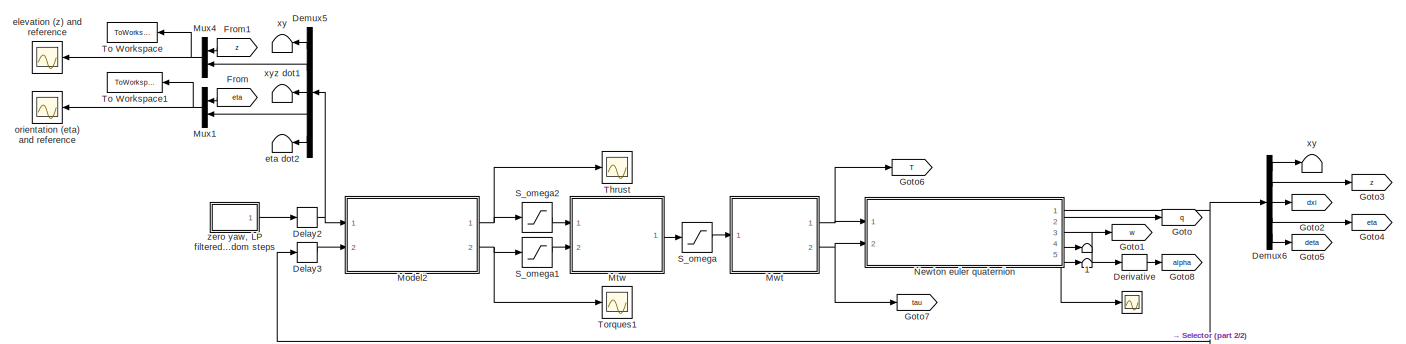
[diagram: root canvas - part 1/2, full width, top band]
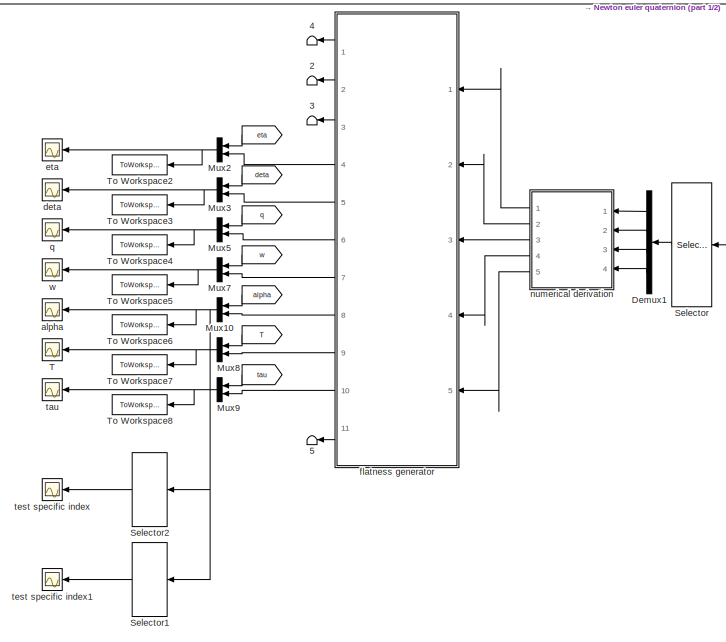
[diagram: root canvas - part 2/2, bottom center region]
MODEL slx_0e7864899def
KIND model
CONFIG AbsTol = 1e-3
CONFIG FixedStep = auto
CONFIG MaxStep = auto
CONFIG MinStep = auto
CONFIG RelTol = 1e-3
CONFIG SampleTimeConstraint = Unconstrained
CONFIG Solver = VariableStepAuto
CONFIG SolverMode = Auto
CONFIG SolverName = VariableStepAuto
CONFIG StartTime = 0.0
CONFIG StopTime = 60
BLOCK [Scope]  
  Ports = [1]
  ScopeSpecificationString = Simulink.scopes.TimeScopeBlockCfg('CurrentConfiguration', extmgr.ConfigurationSet(extmgr.Configuration('Core','General UI',true),extmgr.Configuration('Core','Source UI',true),extmgr.Configuration('Sources','WiredSimulink',true,'DataLoggingVariableName','ScopeData2','DataLoggingSaveFormat','Array','DataLoggingDecimation','1','DataLoggingDecimateData',true),extmgr.Configuration('Visuals','Time Domai...<+1591ch>
BLOCK [From]       
  GotoTag = deta
BLOCK [From]        
  GotoTag = eta
BLOCK [From]         
  GotoTag = q
BLOCK [From]          
  GotoTag = w
BLOCK [From]           
  GotoTag = T
BLOCK [From]            
  GotoTag = tau
BLOCK [Terminator]             
BLOCK [From]                
  GotoTag = alpha
BLOCK [Terminator]             1
BLOCK [Terminator]             2
BLOCK [Terminator]             3
BLOCK [Terminator]             4
BLOCK [Terminator]             5
BLOCK [Terminator]    eta dot2
BLOCK [Terminator]    xy
BLOCK [Terminator]    xy 
BLOCK [Terminator]   xyz dot1
BLOCK [Delay] Delay2
  DelayLength = 1
  InitialCondition = 0
  InputPortMap = u0
  Ports = [1, 1]
  SampleTime = inner_h
BLOCK [Delay] Delay3
  DelayLength = 1
  InitialCondition = 0
  InputPortMap = u0
  Ports = [1, 1]
  SampleTime = inner_h
BLOCK [Demux] Demux1
  DisplayOption = bar
  Ports = [1, 4]
BLOCK [Demux] Demux5
  DisplayOption = bar
  Outputs = [2,1,3,3,3]
  Ports = [1, 5]
BLOCK [Demux] Demux6
  DisplayOption = bar
  Outputs = [2,1,3,3,3]
  Ports = [1, 5]
BLOCK [Derivative] Derivative
BLOCK [From] From
  GotoTag = eta
BLOCK [From] From1
  GotoTag = z
BLOCK [Goto] Goto
  GotoTag = q
BLOCK [Goto] Goto1
  GotoTag = w
BLOCK [Goto] Goto2
  GotoTag = dxi
BLOCK [Goto] Goto3
  GotoTag = z
BLOCK [Goto] Goto4
  GotoTag = eta
BLOCK [Goto] Goto5
  GotoTag = deta
BLOCK [Goto] Goto6
  GotoTag = T
BLOCK [Goto] Goto7
  GotoTag = tau
BLOCK [Goto] Goto8
  GotoTag = alpha
BLOCK [ModelReference] Model2
  ModelNameDialog = inner_PD_c.mdl
  ModelReferenceVersion = 1.87
  Ports = [2, 2]
  Variant = off
BLOCK [ModelReference] Mtw
  ModelNameDialog = thrust2omega.mdl
  ModelReferenceVersion = 1.3
  Ports = [2, 1]
  Variant = off
BLOCK [Mux] Mux1
  DisplayOption = bar
  Inputs = 2
  Ports = [2, 1]
BLOCK [Mux] Mux10
  DisplayOption = bar
  Inputs = 2
  Ports = [2, 1]
BLOCK [Mux] Mux2
  DisplayOption = bar
  Inputs = 2
  Ports = [2, 1]
BLOCK [Mux] Mux3
  DisplayOption = bar
  Inputs = 2
  Ports = [2, 1]
BLOCK [Mux] Mux4
  DisplayOption = bar
  Inputs = 2
  Ports = [2, 1]
BLOCK [Mux] Mux5
  DisplayOption = bar
  Inputs = 2
  Ports = [2, 1]
BLOCK [Mux] Mux7
  DisplayOption = bar
  Inputs = 2
  Ports = [2, 1]
BLOCK [Mux] Mux8
  DisplayOption = bar
  Inputs = 2
  Ports = [2, 1]
BLOCK [Mux] Mux9
  DisplayOption = bar
  Inputs = 2
  Ports = [2, 1]
BLOCK [ModelReference] Mwt
  ModelNameDialog = omega2thrust.mdl
  ModelReferenceVersion = 1.3
  Ports = [1, 2]
  Variant = off
BLOCK [ModelReference] Newton euler quaternion
  ModelNameDialog = quadcopter_model_c_NewtonEuler.mdl
  ModelReferenceVersion = 1.325
  Ports = [2, 5]
  Variant = off
BLOCK [Saturate] S_omega
  InputPortMap = u0
  LowerLimit = omega_min_lim
  Ports = [1, 1]
  UpperLimit = omega_max_lim
BLOCK [Saturate] S_omega1
  InputPortMap = u0
  LowerLimit = tau_min_lim
  Ports = [1, 1]
  UpperLimit = tau_max_lim
BLOCK [Saturate] S_omega2
  InputPortMap = u0
  LowerLimit = tau_min_lim
  Ports = [1, 1]
  UpperLimit = T_max_lim
BLOCK [Selector] Selector
  IndexOptions = Index vector (dialog)
  Indices = [1 2 3 9]
  InputPortWidth = 12
  OutputSizes = 1
  Ports = [1, 1]
BLOCK [Selector] Selector1
  IndexOptions = Index vector (dialog)
  Indices = [2 5]
  InputPortWidth = 6
  OutputSizes = 1
  Ports = [1, 1]
BLOCK [Selector] Selector2
  IndexOptions = Index vector (dialog)
  Indices = [3 6]
  InputPortWidth = 6
  OutputSizes = 1
  Ports = [1, 1]
BLOCK [Scope] T
  Ports = [1]
  ScopeSpecificationString = Simulink.scopes.TimeScopeBlockCfg('CurrentConfiguration', extmgr.ConfigurationSet(extmgr.Configuration('Core','General UI',true),extmgr.Configuration('Core','Source UI',true),extmgr.Configuration('Sources','WiredSimulink',true,'DataLoggingVariableName','ScopeData5','DataLoggingSaveFormat','Array','DataLoggingDecimation','1','DataLoggingDecimateData',true),extmgr.Configuration('Visuals','Time Domai...<+1501ch>
BLOCK [Scope] Thrust
  Ports = [1]
  ScopeSpecificationString = Simulink.scopes.TimeScopeBlockCfg('CurrentConfiguration', extmgr.ConfigurationSet(extmgr.Configuration('Core','General UI',true),extmgr.Configuration('Core','Source UI',true),extmgr.Configuration('Sources','WiredSimulink',true,'DataLoggingVariableName','ScopeData1','DataLoggingLimitDataPoints',true,'DataLoggingSaveFormat','Array','DataLoggingDecimation','1','DataLoggingDecimateData',true),extmgr.C...<+1490ch>
BLOCK [ToWorkspace] To Workspace
  FixptAsFi = on
  MaxDataPoints = inf
  Ports = [1]
  SampleTime = -1
  Save2DSignal = 3-D array (concatenate along third dimension)
  SaveFormat = Timeseries
  VariableName = zresp
BLOCK [ToWorkspace] To Workspace1
  FixptAsFi = on
  MaxDataPoints = inf
  Ports = [1]
  SampleTime = -1
  Save2DSignal = 3-D array (concatenate along third dimension)
  SaveFormat = Timeseries
  VariableName = angresp
BLOCK [ToWorkspace] To Workspace2
  FixptAsFi = on
  MaxDataPoints = inf
  Ports = [1]
  SampleTime = -1
  Save2DSignal = 3-D array (concatenate along third dimension)
  SaveFormat = Timeseries
  VariableName = etaflat
BLOCK [ToWorkspace] To Workspace3
  FixptAsFi = on
  MaxDataPoints = inf
  Ports = [1]
  SampleTime = -1
  Save2DSignal = 3-D array (concatenate along third dimension)
  SaveFormat = Timeseries
  VariableName = detaflat
BLOCK [ToWorkspace] To Workspace4
  FixptAsFi = on
  MaxDataPoints = inf
  Ports = [1]
  SampleTime = -1
  Save2DSignal = 3-D array (concatenate along third dimension)
  SaveFormat = Timeseries
  VariableName = qflat
BLOCK [ToWorkspace] To Workspace5
  FixptAsFi = on
  MaxDataPoints = inf
  Ports = [1]
  SampleTime = -1
  Save2DSignal = 3-D array (concatenate along third dimension)
  SaveFormat = Timeseries
  VariableName = omegaflat
BLOCK [ToWorkspace] To Workspace6
  FixptAsFi = on
  MaxDataPoints = inf
  Ports = [1]
  SampleTime = -1
  Save2DSignal = 3-D array (concatenate along third dimension)
  SaveFormat = Timeseries
  VariableName = alphaflat
BLOCK [ToWorkspace] To Workspace7
  FixptAsFi = on
  MaxDataPoints = inf
  Ports = [1]
  SampleTime = -1
  Save2DSignal = 3-D array (concatenate along third dimension)
  SaveFormat = Timeseries
  VariableName = Tflat
BLOCK [ToWorkspace] To Workspace8
  FixptAsFi = on
  MaxDataPoints = inf
  Ports = [1]
  SampleTime = -1
  Save2DSignal = 3-D array (concatenate along third dimension)
  SaveFormat = Timeseries
  VariableName = tauflat
BLOCK [Scope] Torques1
  Ports = [1]
  ScopeSpecificationString = Simulink.scopes.TimeScopeBlockCfg('CurrentConfiguration', extmgr.ConfigurationSet(extmgr.Configuration('Core','General UI',true),extmgr.Configuration('Core','Source UI',true),extmgr.Configuration('Sources','WiredSimulink',true,'DataLoggingVariableName','ScopeData2','DataLoggingSaveFormat','Array','DataLoggingDecimation','1','DataLoggingDecimateData',true),extmgr.Configuration('Visuals','Time Domai...<+1486ch>
BLOCK [Scope] alpha
  Ports = [1]
  ScopeSpecificationString = Simulink.scopes.TimeScopeBlockCfg('CurrentConfiguration', extmgr.ConfigurationSet(extmgr.Configuration('Core','General UI',true),extmgr.Configuration('Core','Source UI',true),extmgr.Configuration('Sources','WiredSimulink',true,'DataLoggingVariableName','ScopeData1'),extmgr.Configuration('Visuals','Time Domain',true,'SerializedDisplays',{struct('MinYLimReal','-0.14909','MaxYLimReal','0.08031','YLab...<+1563ch>
BLOCK [Scope] deta
  Ports = [1]
  ScopeSpecificationString = Simulink.scopes.TimeScopeBlockCfg('CurrentConfiguration', extmgr.ConfigurationSet(extmgr.Configuration('Core','General UI',true),extmgr.Configuration('Core','Source UI',true),extmgr.Configuration('Sources','WiredSimulink',true,'DataLoggingVariableName','ScopeData2','DataLoggingSaveFormat','Array','DataLoggingDecimation','1','DataLoggingDecimateData',true),extmgr.Configuration('Visuals','Time Domai...<+1645ch>
BLOCK [Scope] elevation (z) and reference
  Ports = [1]
  ScopeSpecificationString = Simulink.scopes.TimeScopeBlockCfg('CurrentConfiguration', extmgr.ConfigurationSet(extmgr.Configuration('Core','General UI',true),extmgr.Configuration('Core','Source UI',true),extmgr.Configuration('Sources','WiredSimulink',true,'DataLoggingVariableName','ScopeData1'),extmgr.Configuration('Visuals','Time Domain',true,'SerializedDisplays',{struct('MinYLimReal','-0.65761','MaxYLimReal','0.65784','YLab...<+1407ch>
BLOCK [Scope] eta
  Ports = [1]
  ScopeSpecificationString = Simulink.scopes.TimeScopeBlockCfg('CurrentConfiguration', extmgr.ConfigurationSet(extmgr.Configuration('Core','General UI',true),extmgr.Configuration('Core','Source UI',true),extmgr.Configuration('Sources','WiredSimulink',true,'DataLoggingVariableName','ScopeData1','DataLoggingSaveFormat','Array','DataLoggingDecimation','1','DataLoggingDecimateData',true),extmgr.Configuration('Visuals','Time Domai...<+1642ch>
BLOCK [ModelReference] flatness generator
  ModelNameDialog = flatnessGen.slx
  ModelReferenceVersion = 1.117
  Ports = [5, 11]
  Variant = off
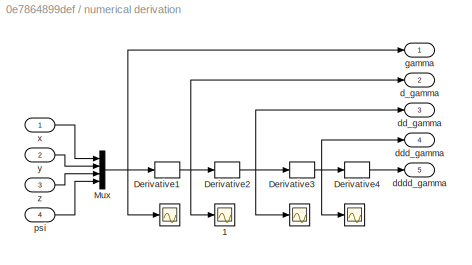
BLOCK [SubSystem] numerical derivation
  Ports = [4, 5]
  RequestExecContextInheritance = off
  Variant = off
BLOCK [Scope] numerical derivation/  
  Ports = [1]
  ScopeSpecificationString = C++SS(StrPVP('SaveName','ScopeData1'),StrPVP('LimitDataPoints','on'),StrPVP('DataFormat','Array'),StrPVP('Decimation','1'),StrPVP('BlockParamSampleInput','off'))
BLOCK [Scope] numerical derivation/   
  Ports = [1]
  ScopeSpecificationString = Simulink.scopes.TimeScopeBlockCfg('CurrentConfiguration', extmgr.ConfigurationSet(extmgr.Configuration('Core','General UI',true),extmgr.Configuration('Core','Source UI',true),extmgr.Configuration('Sources','WiredSimulink',true,'DataLoggingVariableName','ScopeData2','DataLoggingLimitDataPoints',true,'DataLoggingSaveFormat','Array','DataLoggingDecimation','1','DataLoggingDecimateData',true),extmgr.C...<+1557ch>
BLOCK [Scope] numerical derivation/    
  Ports = [1]
  ScopeSpecificationString = C++SS(StrPVP('SaveName','ScopeData3'),StrPVP('LimitDataPoints','on'),StrPVP('DataFormat','Array'),StrPVP('Decimation','1'),StrPVP('BlockParamSampleInput','off'))
BLOCK [Scope] numerical derivation/ 1
  Ports = [1]
  ScopeSpecificationString = C++SS(StrPVP('SaveName','ScopeData4'),StrPVP('LimitDataPoints','on'),StrPVP('DataFormat','Array'),StrPVP('Decimation','1'),StrPVP('BlockParamSampleInput','off'))
BLOCK [Derivative] numerical derivation/Derivative1
BLOCK [Derivative] numerical derivation/Derivative2
BLOCK [Derivative] numerical derivation/Derivative3
BLOCK [Derivative] numerical derivation/Derivative4
BLOCK [Mux] numerical derivation/Mux
  DisplayOption = bar
  Ports = [4, 1]
BLOCK [Outport] numerical derivation/d_gamma
  IconDisplay = Port number
  Port = 2
  PortDimensions = 4
BLOCK [Outport] numerical derivation/dd_gamma
  IconDisplay = Port number
  Port = 3
  PortDimensions = 4
BLOCK [Outport] numerical derivation/ddd_gamma
  IconDisplay = Port number
  Port = 4
  PortDimensions = 4
BLOCK [Outport] numerical derivation/dddd_gamma
  IconDisplay = Port number
  Port = 5
  PortDimensions = 4
BLOCK [Outport] numerical derivation/gamma
  IconDisplay = Port number
  PortDimensions = 4
BLOCK [Inport] numerical derivation/psi
  IconDisplay = Port number
  Port = 4
  PortDimensions = 1
BLOCK [Inport] numerical derivation/x
  IconDisplay = Port number
  PortDimensions = 1
BLOCK [Inport] numerical derivation/y
  IconDisplay = Port number
  Port = 2
  PortDimensions = 1
BLOCK [Inport] numerical derivation/z
  IconDisplay = Port number
  Port = 3
  PortDimensions = 1
BLOCK [Scope] orientation (eta) and reference
  Ports = [1]
  ScopeSpecificationString = Simulink.scopes.TimeScopeBlockCfg('CurrentConfiguration', extmgr.ConfigurationSet(extmgr.Configuration('Core','General UI',true),extmgr.Configuration('Core','Source UI',true),extmgr.Configuration('Sources','WiredSimulink',true,'DataLoggingVariableName','ScopeData2'),extmgr.Configuration('Visuals','Time Domain',true,'SerializedDisplays',{struct('MinYLimReal','-0.88157','MaxYLimReal','0.88415','YLab...<+1463ch>
BLOCK [Scope] q
  Ports = [1]
  ScopeSpecificationString = Simulink.scopes.TimeScopeBlockCfg('CurrentConfiguration', extmgr.ConfigurationSet(extmgr.Configuration('Core','General UI',true),extmgr.Configuration('Core','Source UI',true),extmgr.Configuration('Sources','WiredSimulink',true,'DataLoggingVariableName','ScopeData3','DataLoggingSaveFormat','Array','DataLoggingDecimation','1','DataLoggingDecimateData',true),extmgr.Configuration('Visuals','Time Domai...<+1713ch>
BLOCK [Scope] tau
  Ports = [1]
  ScopeSpecificationString = Simulink.scopes.TimeScopeBlockCfg('CurrentConfiguration', extmgr.ConfigurationSet(extmgr.Configuration('Core','General UI',true),extmgr.Configuration('Core','Source UI',true),extmgr.Configuration('Sources','WiredSimulink',true,'DataLoggingVariableName','ScopeData6','DataLoggingSaveFormat','Array','DataLoggingDecimation','1','DataLoggingDecimateData',true),extmgr.Configuration('Visuals','Time Domai...<+1618ch>
BLOCK [Scope] test specific index
  Ports = [1]
  ScopeSpecificationString = Simulink.scopes.TimeScopeBlockCfg('CurrentConfiguration', extmgr.ConfigurationSet(extmgr.Configuration('Core','General UI',true),extmgr.Configuration('Core','Source UI',true),extmgr.Configuration('Sources','WiredSimulink',true,'DataLoggingVariableName','ScopeData2'),extmgr.Configuration('Visuals','Time Domain',true,'SerializedDisplays',{struct('MinYLimReal','-0.60734','MaxYLimReal','0.45821','YLab...<+1458ch>
BLOCK [Scope] test specific index1
  Ports = [1]
  ScopeSpecificationString = Simulink.scopes.TimeScopeBlockCfg('CurrentConfiguration', extmgr.ConfigurationSet(extmgr.Configuration('Core','General UI',true),extmgr.Configuration('Core','Source UI',true),extmgr.Configuration('Sources','WiredSimulink',true,'DataLoggingVariableName','ScopeData1'),extmgr.Configuration('Visuals','Time Domain',true,'SerializedDisplays',{struct('MinYLimReal','-0.85133','MaxYLimReal','0.87428','YLab...<+1459ch>
BLOCK [Scope] w
  Ports = [1]
  ScopeSpecificationString = Simulink.scopes.TimeScopeBlockCfg('CurrentConfiguration', extmgr.ConfigurationSet(extmgr.Configuration('Core','General UI',true),extmgr.Configuration('Core','Source UI',true),extmgr.Configuration('Sources','WiredSimulink',true,'DataLoggingVariableName','ScopeData4','DataLoggingSaveFormat','Array','DataLoggingDecimation','1','DataLoggingDecimateData',true),extmgr.Configuration('Visuals','Time Domai...<+1699ch>
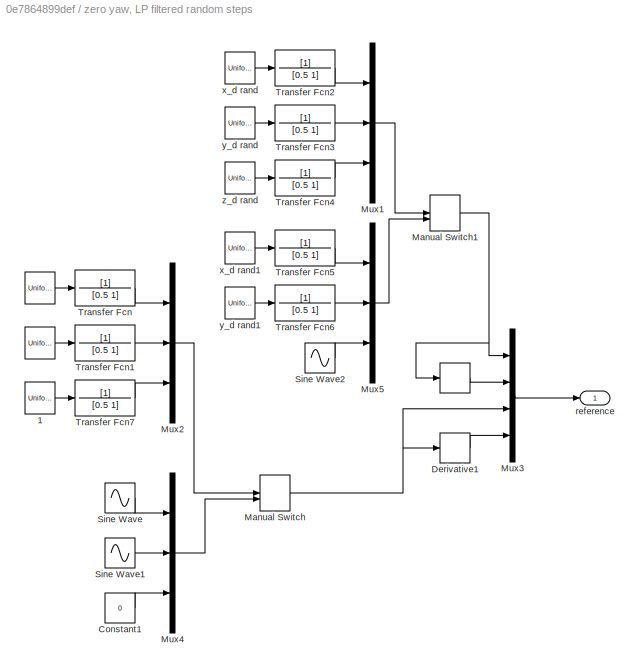
BLOCK [SubSystem] zero yaw, LP filtered random steps
  Ports = [0, 1]
  RequestExecContextInheritance = off
  Variant = off
BLOCK [UniformRandomNumber] zero yaw, LP filtered random steps/ 
  Maximum = pi/4
  Minimum = -pi/4
  SampleTime = 10
  Seed = 4
BLOCK [UniformRandomNumber] zero yaw, LP filtered random steps/   
  Maximum = pi/4
  Minimum = -pi/4
  SampleTime = 10
  Seed = 3
BLOCK [Derivative] zero yaw, LP filtered random steps/        
BLOCK [UniformRandomNumber] zero yaw, LP filtered random steps/ 1
  Maximum = pi/4
  Minimum = -pi/4
  SampleTime = 10
  Seed = 10
BLOCK [Constant] zero yaw, LP filtered random steps/Constant1
  Value = 0
BLOCK [Derivative] zero yaw, LP filtered random steps/Derivative1
BLOCK [ManualSwitch] zero yaw, LP filtered random steps/Manual Switch
BLOCK [ManualSwitch] zero yaw, LP filtered random steps/Manual Switch1
  CurrentSetting = 0
BLOCK [Mux] zero yaw, LP filtered random steps/Mux1
  DisplayOption = bar
  Inputs = 3
  Ports = [3, 1]
BLOCK [Mux] zero yaw, LP filtered random steps/Mux2
  DisplayOption = bar
  Inputs = 3
  Ports = [3, 1]
BLOCK [Mux] zero yaw, LP filtered random steps/Mux3
  DisplayOption = bar
  Inputs = [3,3,3,3]
  Ports = [4, 1]
BLOCK [Mux] zero yaw, LP filtered random steps/Mux4
  DisplayOption = bar
  Inputs = 3
  Ports = [3, 1]
BLOCK [Mux] zero yaw, LP filtered random steps/Mux5
  DisplayOption = bar
  Inputs = 3
  Ports = [3, 1]
BLOCK [Sin] zero yaw, LP filtered random steps/Sine Wave
  Amplitude = 0.5
  Ports = [0, 1]
  SampleTime = 0
BLOCK [Sin] zero yaw, LP filtered random steps/Sine Wave1
  Amplitude = 0.5
  Frequency = 0.75
  Phase = pi/2
  Ports = [0, 1]
  SampleTime = 0
BLOCK [Sin] zero yaw, LP filtered random steps/Sine Wave2
  Amplitude = 0.5
  Frequency = 0.75
  Ports = [0, 1]
  SampleTime = 0
BLOCK [TransferFcn] zero yaw, LP filtered random steps/Transfer Fcn
  Denominator = [0.5 1]
BLOCK [TransferFcn] zero yaw, LP filtered random steps/Transfer Fcn1
  Denominator = [0.5 1]
BLOCK [TransferFcn] zero yaw, LP filtered random steps/Transfer Fcn2
  Denominator = [0.5 1]
BLOCK [TransferFcn] zero yaw, LP filtered random steps/Transfer Fcn3
  Denominator = [0.5 1]
BLOCK [TransferFcn] zero yaw, LP filtered random steps/Transfer Fcn4
  Denominator = [0.5 1]
BLOCK [TransferFcn] zero yaw, LP filtered random steps/Transfer Fcn5
  Denominator = [0.5 1]
BLOCK [TransferFcn] zero yaw, LP filtered random steps/Transfer Fcn6
  Denominator = [0.5 1]
BLOCK [TransferFcn] zero yaw, LP filtered random steps/Transfer Fcn7
  Denominator = [0.5 1]
BLOCK [Outport] zero yaw, LP filtered random steps/reference
  IconDisplay = Port number
BLOCK [UniformRandomNumber] zero yaw, LP filtered random steps/x_d rand
  Maximum = 3
  Minimum = -3
  SampleTime = 10
BLOCK [UniformRandomNumber] zero yaw, LP filtered random steps/x_d rand1
  Maximum = 3
  Minimum = -3
  SampleTime = 10
BLOCK [UniformRandomNumber] zero yaw, LP filtered random steps/y_d rand
  Maximum = 3
  Minimum = -3
  SampleTime = 10
  Seed = 1
BLOCK [UniformRandomNumber] zero yaw, LP filtered random steps/y_d rand1
  Maximum = 3
  Minimum = -3
  SampleTime = 10
  Seed = 1
BLOCK [UniformRandomNumber] zero yaw, LP filtered random steps/z_d rand
  Maximum = 3
  Minimum = 0
  SampleTime = 10
  Seed = 2
LINE                :1 -> Mux10:1
LINE            :1 -> Mux9:1
LINE           :1 -> Mux8:1
LINE          :1 -> Mux7:1
LINE         :1 -> Mux5:1
LINE        :1 -> Mux2:1
LINE       :1 -> Mux3:1
NET Delay2:1 -> Demux5:1, Model2:1
LINE Delay3:1 -> Model2:2
LINE Demux1:1 -> numerical derivation:1
LINE Demux1:2 -> numerical derivation:2
LINE Demux1:3 -> numerical derivation:3
LINE Demux1:4 -> numerical derivation:4
LINE Demux5:1 ->    xy:1
LINE Demux5:2 -> Mux4:2
LINE Demux5:3 ->   xyz dot1:1
LINE Demux5:4 -> Mux1:2
LINE Demux5:5 ->    eta dot2:1
LINE Demux6:1 ->    xy :1
LINE Demux6:2 -> Goto3:1
LINE Demux6:3 -> Goto2:1
LINE Demux6:4 -> Goto4:1
LINE Demux6:5 -> Goto5:1
LINE Derivative:1 -> Goto8:1
LINE From1:1 -> Mux4:1
LINE From:1 -> Mux1:1
NET Model2:1 -> S_omega2:1, Thrust:1
NET Model2:2 -> S_omega1:1, Torques1:1
LINE Mtw:1 -> S_omega:1
NET Mux10:1 -> Selector1:1, Selector2:1, To Workspace6:1, alpha:1
NET Mux1:1 -> To Workspace1:1, orientation (eta) and reference:1
NET Mux2:1 -> To Workspace2:1, eta:1
NET Mux3:1 -> To Workspace3:1, deta:1
NET Mux4:1 -> To Workspace:1, elevation (z) and reference:1
NET Mux5:1 -> To Workspace4:1, q:1
NET Mux7:1 -> To Workspace5:1, w:1
NET Mux8:1 -> T:1, To Workspace7:1
NET Mux9:1 -> To Workspace8:1, tau:1
NET Mwt:1 -> Goto6:1, Newton euler quaternion:1
NET Mwt:2 -> Goto7:1, Newton euler quaternion:2
NET Newton euler quaternion:1 -> Delay3:1, Demux6:1, Selector:1
LINE Newton euler quaternion:2 -> Goto:1
NET Newton euler quaternion:3 -> Derivative:1, Goto1:1
NET Newton euler quaternion:4 ->             1:1,  :1
LINE Newton euler quaternion:5 ->             :1
LINE S_omega1:1 -> Mtw:2
LINE S_omega2:1 -> Mtw:1
LINE S_omega:1 -> Mwt:1
LINE Selector1:1 -> test specific index1:1
LINE Selector2:1 -> test specific index:1
LINE Selector:1 -> Demux1:1
LINE flatness generator:1 ->             4:1
LINE flatness generator:10 -> Mux9:2
LINE flatness generator:11 ->             5:1
LINE flatness generator:2 ->             2:1
LINE flatness generator:3 ->             3:1
LINE flatness generator:4 -> Mux2:2
LINE flatness generator:5 -> Mux3:2
LINE flatness generator:6 -> Mux5:2
LINE flatness generator:7 -> Mux7:2
LINE flatness generator:8 -> Mux10:2
LINE flatness generator:9 -> Mux8:2
NET numerical derivation/Derivative1:1 -> numerical derivation/ 1:1, numerical derivation/Derivative2:1, numerical derivation/d_gamma:1
NET numerical derivation/Derivative2:1 -> numerical derivation/  :1, numerical derivation/Derivative3:1, numerical derivation/dd_gamma:1
NET numerical derivation/Derivative3:1 -> numerical derivation/   :1, numerical derivation/Derivative4:1, numerical derivation/ddd_gamma:1
LINE numerical derivation/Derivative4:1 -> numerical derivation/dddd_gamma:1
NET numerical derivation/Mux:1 -> numerical derivation/    :1, numerical derivation/Derivative1:1, numerical derivation/gamma:1
LINE numerical derivation/psi:1 -> numerical derivation/Mux:4
LINE numerical derivation/x:1 -> numerical derivation/Mux:1
LINE numerical derivation/y:1 -> numerical derivation/Mux:2
LINE numerical derivation/z:1 -> numerical derivation/Mux:3
LINE numerical derivation:1 -> flatness generator:1
LINE numerical derivation:2 -> flatness generator:2
LINE numerical derivation:3 -> flatness generator:3
LINE numerical derivation:4 -> flatness generator:4
LINE numerical derivation:5 -> flatness generator:5
LINE zero yaw, LP filtered random steps/        :1 -> zero yaw, LP filtered random steps/Mux3:2
LINE zero yaw, LP filtered random steps/   :1 -> zero yaw, LP filtered random steps/Transfer Fcn:1
LINE zero yaw, LP filtered random steps/ 1:1 -> zero yaw, LP filtered random steps/Transfer Fcn7:1
LINE zero yaw, LP filtered random steps/ :1 -> zero yaw, LP filtered random steps/Transfer Fcn1:1
LINE zero yaw, LP filtered random steps/Constant1:1 -> zero yaw, LP filtered random steps/Mux4:3
LINE zero yaw, LP filtered random steps/Derivative1:1 -> zero yaw, LP filtered random steps/Mux3:4
NET zero yaw, LP filtered random steps/Manual Switch1:1 -> zero yaw, LP filtered random steps/        :1, zero yaw, LP filtered random steps/Mux3:1
NET zero yaw, LP filtered random steps/Manual Switch:1 -> zero yaw, LP filtered random steps/Derivative1:1, zero yaw, LP filtered random steps/Mux3:3
LINE zero yaw, LP filtered random steps/Mux1:1 -> zero yaw, LP filtered random steps/Manual Switch1:1
LINE zero yaw, LP filtered random steps/Mux2:1 -> zero yaw, LP filtered random steps/Manual Switch:1
LINE zero yaw, LP filtered random steps/Mux3:1 -> zero yaw, LP filtered random steps/reference:1
LINE zero yaw, LP filtered random steps/Mux4:1 -> zero yaw, LP filtered random steps/Manual Switch:2
LINE zero yaw, LP filtered random steps/Mux5:1 -> zero yaw, LP filtered random steps/Manual Switch1:2
LINE zero yaw, LP filtered random steps/Sine Wave1:1 -> zero yaw, LP filtered random steps/Mux4:2
LINE zero yaw, LP filtered random steps/Sine Wave2:1 -> zero yaw, LP filtered random steps/Mux5:3
LINE zero yaw, LP filtered random steps/Sine Wave:1 -> zero yaw, LP filtered random steps/Mux4:1
LINE zero yaw, LP filtered random steps/Transfer Fcn1:1 -> zero yaw, LP filtered random steps/Mux2:2
LINE zero yaw, LP filtered random steps/Transfer Fcn2:1 -> zero yaw, LP filtered random steps/Mux1:1
LINE zero yaw, LP filtered random steps/Transfer Fcn3:1 -> zero yaw, LP filtered random steps/Mux1:2
LINE zero yaw, LP filtered random steps/Transfer Fcn4:1 -> zero yaw, LP filtered random steps/Mux1:3
LINE zero yaw, LP filtered random steps/Transfer Fcn5:1 -> zero yaw, LP filtered random steps/Mux5:1
LINE zero yaw, LP filtered random steps/Transfer Fcn6:1 -> zero yaw, LP filtered random steps/Mux5:2
LINE zero yaw, LP filtered random steps/Transfer Fcn7:1 -> zero yaw, LP filtered random steps/Mux2:3
LINE zero yaw, LP filtered random steps/Transfer Fcn:1 -> zero yaw, LP filtered random steps/Mux2:1
LINE zero yaw, LP filtered random steps/x_d rand1:1 -> zero yaw, LP filtered random steps/Transfer Fcn5:1
LINE zero yaw, LP filtered random steps/x_d rand:1 -> zero yaw, LP filtered random steps/Transfer Fcn2:1
LINE zero yaw, LP filtered random steps/y_d rand1:1 -> zero yaw, LP filtered random steps/Transfer Fcn6:1
LINE zero yaw, LP filtered random steps/y_d rand:1 -> zero yaw, LP filtered random steps/Transfer Fcn3:1
LINE zero yaw, LP filtered random steps/z_d rand:1 -> zero yaw, LP filtered random steps/Transfer Fcn4:1
LINE zero yaw, LP filtered random steps:1 -> Delay2:1
note: NET lines group one-source signal fan-out (src -> all destinations, sorted); 1:1 wires keep LINE
